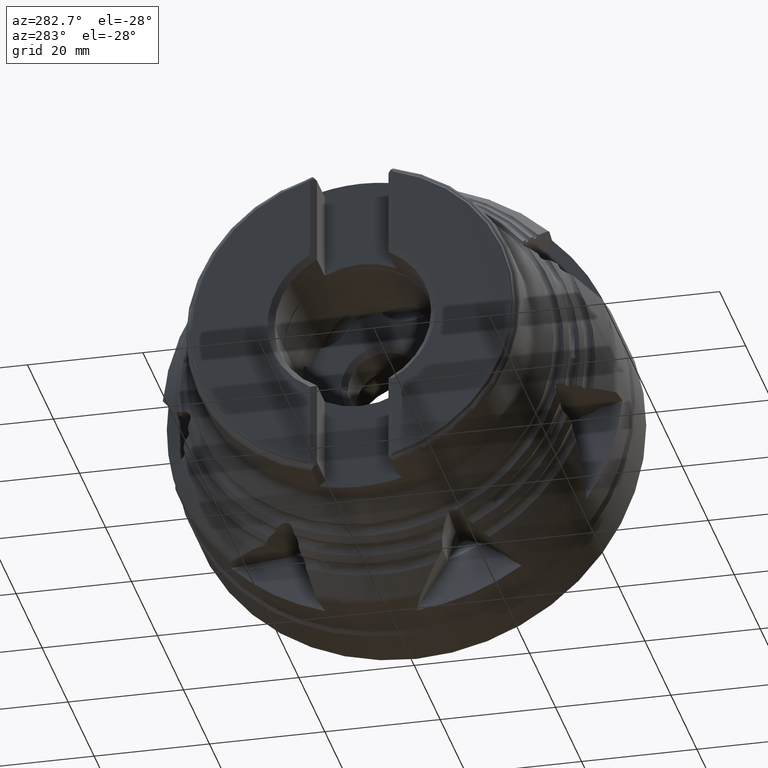
[diagram: clean part render]
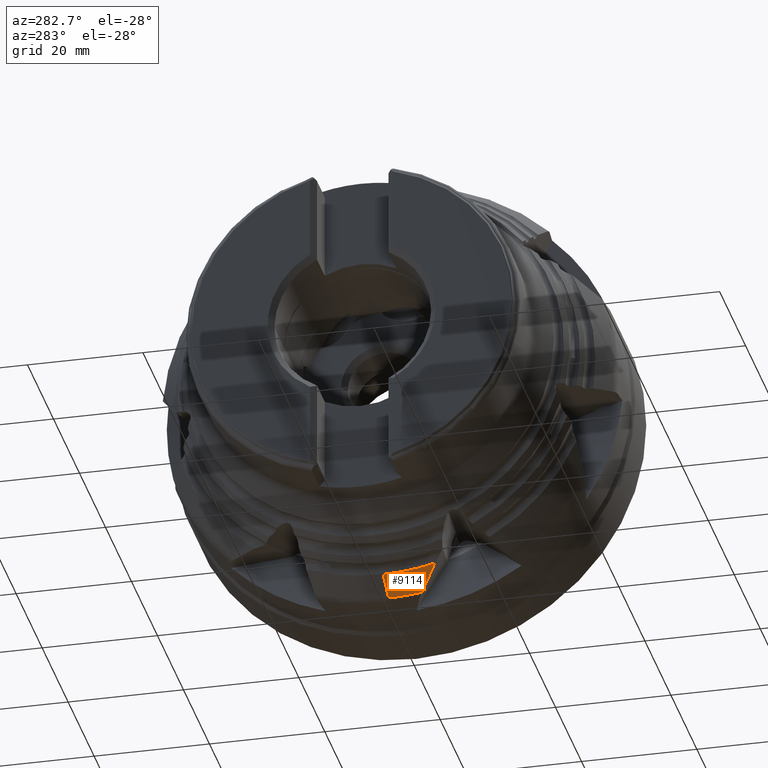
[diagram: same view with one face highlighted and labeled with its STEP entity id]
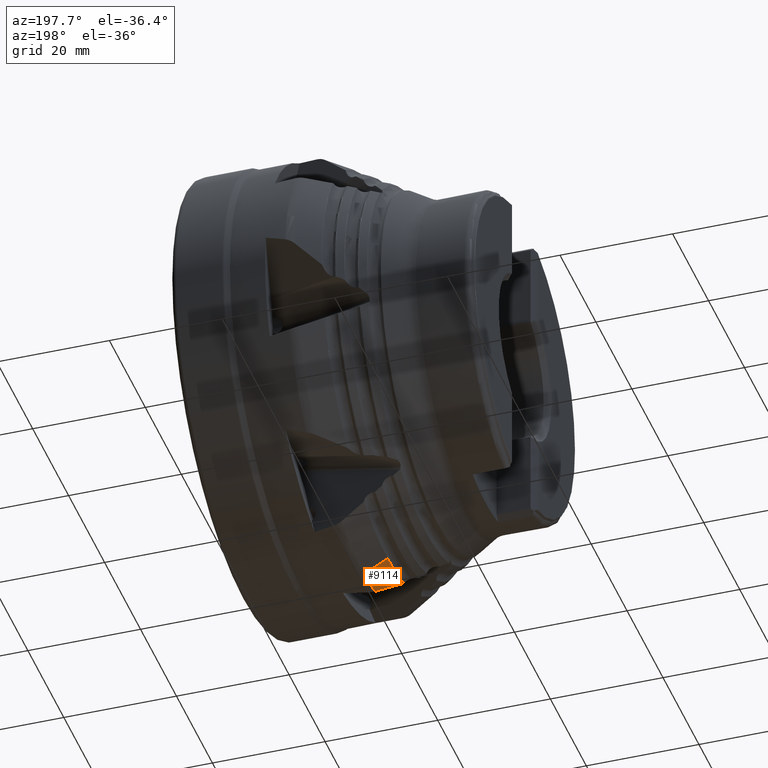
[diagram: same view with one face highlighted and labeled with its STEP entity id]
A machine part, auxiliary view. The second image highlights one B-rep face of the part: STEP entity #9114.
A second angle (auxiliary view) of the same face is appended — the face is thin or edge-on in the first view.
In plain terms, the highlighted conical surface has half-angle 29.986 deg.
Its self-contained STEP definition (entity closure, byte-faithful):
#2133 = ORIENTED_EDGE ( 'NONE', *, *, #7566, .T. ) ;
#2254 = ORIENTED_EDGE ( 'NONE', *, *, #7568, .T. ) ;
#2680 = CARTESIAN_POINT ( 'NONE',  ( -23.86015006379805600, -8.971194204969604500, -35.69154886794476800 ) ) ;
#2681 = CARTESIAN_POINT ( 'NONE',  ( -21.15765343313340100, -6.843023326006665700, -37.76435080002301700 ) ) ;
#2682 = CARTESIAN_POINT ( 'NONE',  ( -22.53141329550126700, -7.900378525679990100, -36.75127338704758300 ) ) ;
#2684 = DIRECTION ( 'NONE',  ( 0.0000000000000000000, 0.0000000000000000000, -1.000000000000000000 ) ) ;
#2685 = DIRECTION ( 'NONE',  ( 1.000000000000000000, -0.0000000000000000000, -0.0000000000000000000 ) ) ;
#2686 = CARTESIAN_POINT ( 'NONE',  ( -19.75000000000000700, -5.795801230861707500, -38.74231207926405300 ) ) ;
#2687 = DIRECTION ( 'NONE',  ( 0.8661452019034969800, 0.0000000000000000000, -0.4997924461409459200 ) ) ;
#2688 = CARTESIAN_POINT ( 'NONE',  ( -19.75000000000000700, 0.0000000000000000000, -39.17343560571050200 ) ) ;
#2689 = CARTESIAN_POINT ( 'NONE',  ( -19.75000000000000700, 0.0000000000000000000, 0.0000000000000000000 ) ) ;
#2693 = DIRECTION ( 'NONE',  ( 0.0000000000000000000, 0.0000000000000000000, -1.000000000000000000 ) ) ;
#2707 = DIRECTION ( 'NONE',  ( 1.000000000000000000, -0.0000000000000000000, -0.0000000000000000000 ) ) ;
#2717 = CARTESIAN_POINT ( 'NONE',  ( -23.86015006379807000, 0.0000000000000000000, 0.0000000000000000000 ) ) ;
#2787 = ORIENTED_EDGE ( 'NONE', *, *, #7570, .T. ) ;
#2830 = ORIENTED_EDGE ( 'NONE', *, *, #7569, .F. ) ;
#3302 = DIRECTION ( 'NONE',  ( 0.0000000000000000000, 0.0000000000000000000, -1.000000000000000000 ) ) ;
#3313 = DIRECTION ( 'NONE',  ( 1.000000000000000000, -0.0000000000000000000, -0.0000000000000000000 ) ) ;
#3314 = CARTESIAN_POINT ( 'NONE',  ( -19.75000000000000700, 0.0000000000000000000, 0.0000000000000000000 ) ) ;
#4604 = EDGE_LOOP ( 'NONE', ( #2133, #2254, #2830, #2787 ) ) ;
#5021 = LINE ( 'NONE', #2688, #5029 ) ;
#5029 = VECTOR ( 'NONE', #2687, 1000.000000000000100 ) ;
#5034 = CIRCLE ( 'NONE', #5409, 36.80175248620870600 ) ;
#5035 = CIRCLE ( 'NONE', #5417, 39.17343560571050200 ) ;
#5409 = AXIS2_PLACEMENT_3D ( 'NONE', #2717, #2707, #2693 ) ;
#5417 = AXIS2_PLACEMENT_3D ( 'NONE', #2689, #2685, #2684 ) ;
#5702 = AXIS2_PLACEMENT_3D ( 'NONE', #3314, #3313, #3302 ) ;
#6484 = CARTESIAN_POINT ( 'NONE',  ( -23.86015006379807000, 0.0000000000000000000, -36.80175248620870600 ) ) ;
#6582 = CARTESIAN_POINT ( 'NONE',  ( -19.75000000000000700, 0.0000000000000000000, -39.17343560571050200 ) ) ;
#6599 = CARTESIAN_POINT ( 'NONE',  ( -19.75000000000000700, -5.795801230861707500, -38.74231207926405300 ) ) ;
#6710 = CARTESIAN_POINT ( 'NONE',  ( -23.86015006379805600, -8.971194204969604500, -35.69154886794476800 ) ) ;
#7083 = VERTEX_POINT ( 'NONE', #6484 ) ;
#7153 = VERTEX_POINT ( 'NONE', #6582 ) ;
#7222 = VERTEX_POINT ( 'NONE', #6710 ) ;
#7278 = VERTEX_POINT ( 'NONE', #6599 ) ;
#7566 = EDGE_CURVE ( 'NONE', #7222, #7083, #5034, .T. ) ;
#7568 = EDGE_CURVE ( 'NONE', #7083, #7153, #5021, .T. ) ;
#7569 = EDGE_CURVE ( 'NONE', #7278, #7153, #5035, .T. ) ;
#7570 = EDGE_CURVE ( 'NONE', #7278, #7222, #10648, .T. ) ;
#9114 = ADVANCED_FACE ( 'NONE', ( #10767 ), #10765, .T. ) ;
#10648 = B_SPLINE_CURVE_WITH_KNOTS ( 'NONE', 3,
 ( #2686, #2681, #2682, #2680 ),
 .UNSPECIFIED., .F., .F.,
 ( 4, 4 ),
 ( 2.852776466412024100E-007, 0.006023873100405636000 ),
 .UNSPECIFIED. ) ;
#10765 = CONICAL_SURFACE ( 'NONE', #5702, 39.17343560571050200, 0.5233591296218815800 ) ;
#10767 = FACE_OUTER_BOUND ( 'NONE', #4604, .T. ) ;